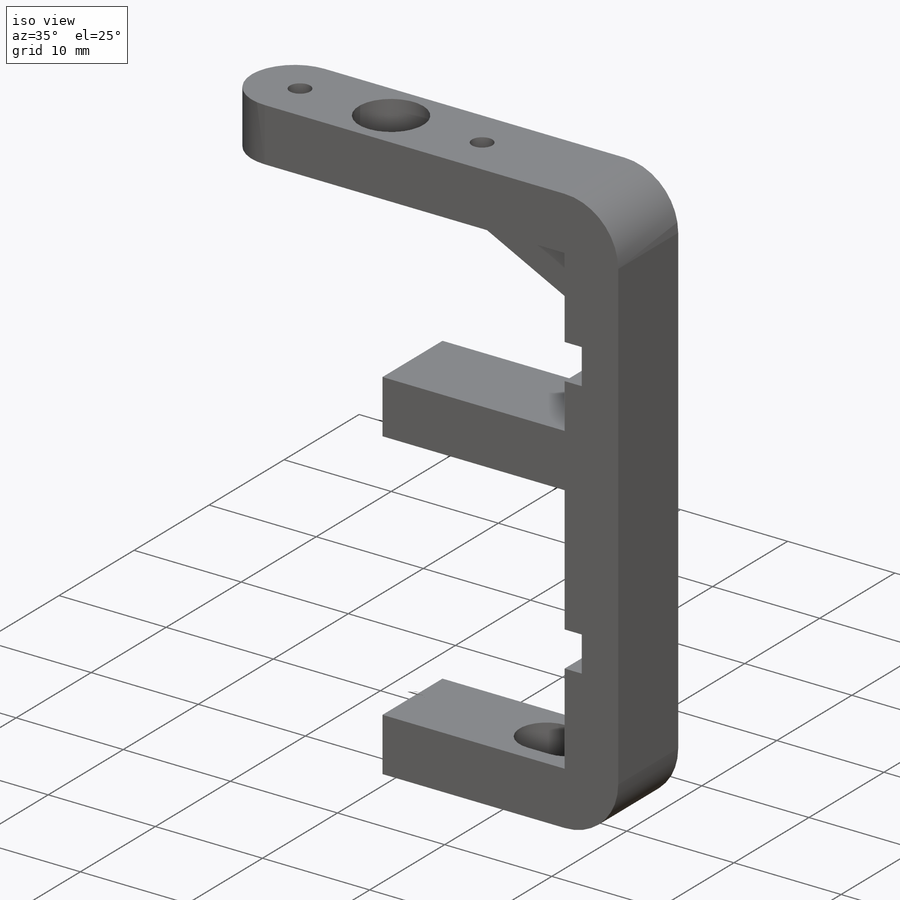
[diagram: iso view]
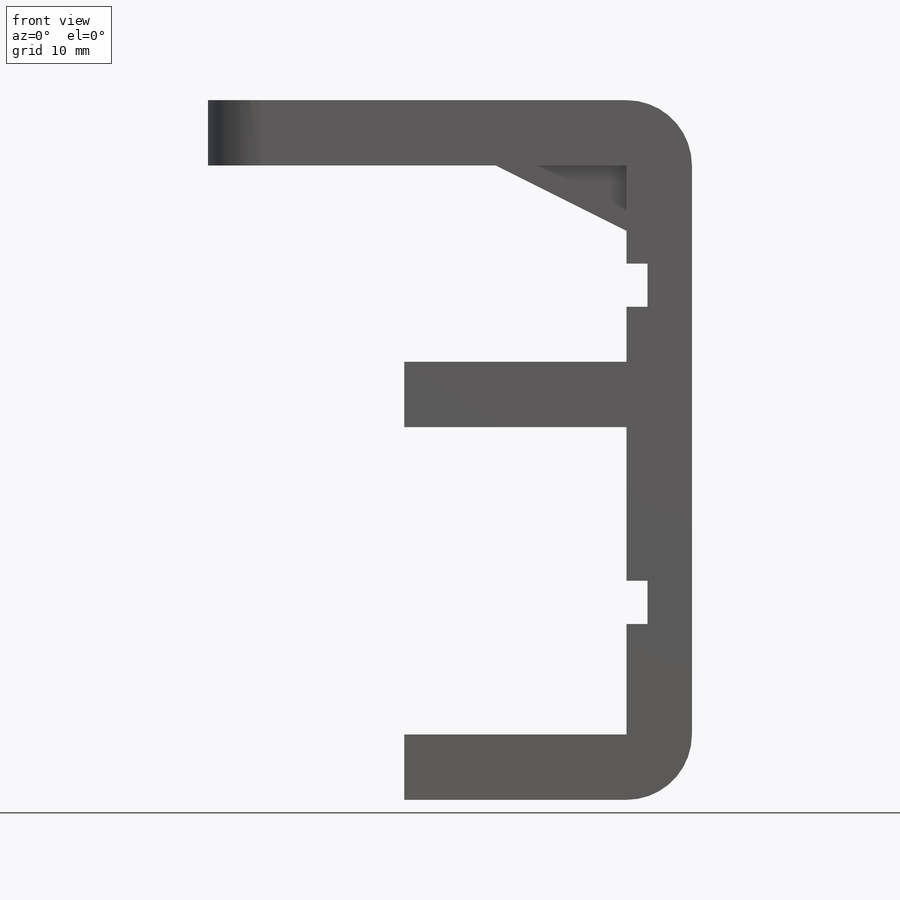
[diagram: front view]
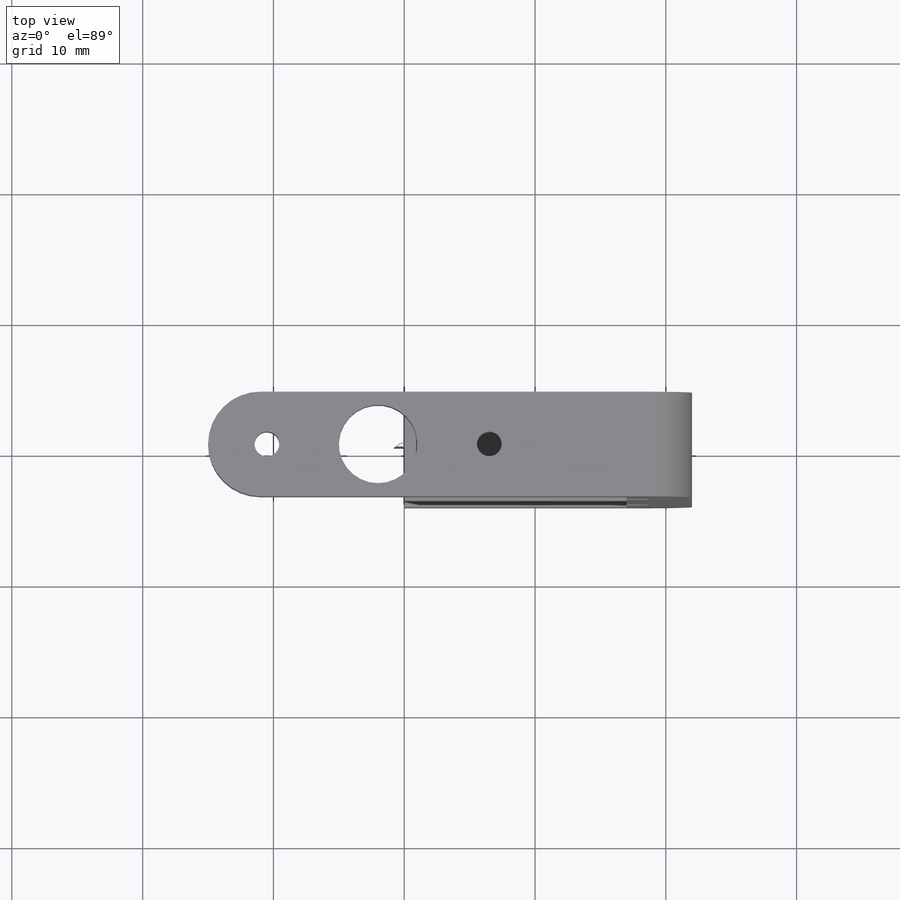
[diagram: top view]
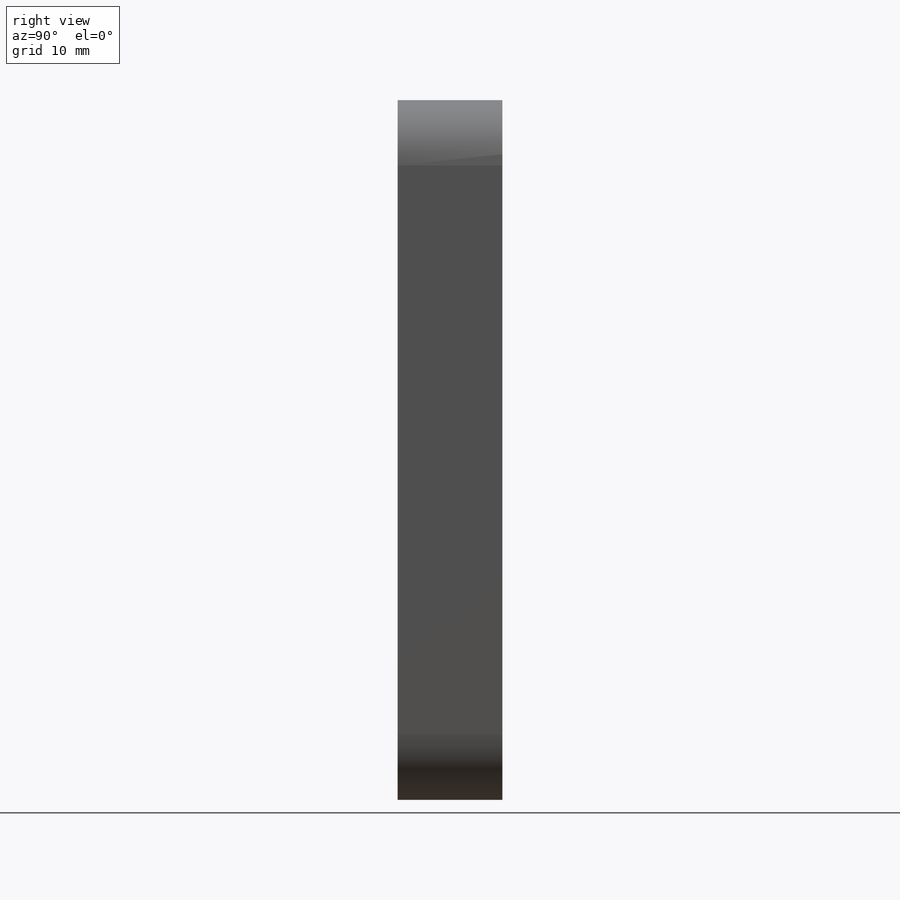
[diagram: right view]
SOLIDWORKS PART (.sldprt)
format: sldprt  version: not decoded by parser v0  size: 323,584 bytes
history: native  units: mm
features: sketch x9, cut_extrude x5, extrude x4, plane x3, fillet x2, material x1 (+10 scaffold rows collapsed)
feature tree (34):
  scaffold x10  (default folders/planes/origin — collapsed)
  material  "ABS"
  plane  "Přední rovina"
  plane  "Horní rovina"
  plane  "Pravá rovina"
  sketch  "Skica1"  dims[c1.D1=23.5mm c1.D2=22.0mm c1.D3=~6.578068mm c1.D4=5.0mm c2.D3=5.0mm c2.D4=5.0mm c2.D2=17.0mm]
  extrude  "Přidat vysunutím1"  Depth=8mm
  sketch  "Skica2"  dims[D1=5.0mm]
  extrude  "Přidat vysunutím2"  Depth=20mm
  sketch  "Skica3"  dims[D1=5.0mm]
  extrude  "Přidat vysunutím3"  Depth=32mm
  sketch  "Skica4"  dims[D1=5.0mm D2=10.0mm]
  extrude  "Přidat vysunutím4"  Depth=5mm
  sketch  "Skica5"  dims[D1=6.0mm D2=13.0mm]
  cut_extrude  "Odebrat vysunutím1"  Depth=15mm
  fillet  "Zaoblit1"  Radius=5mm
  sketch  "Skica6"  dims[D1=2.4mm]
  cut_extrude  "Odebrat vysunutím2"  Depth=8mm
  fillet  "Zaoblit2"  Radius=4mm
  sketch  "Skica7"  dims[D1=1.9mm D2=17.0mm D3=8.5mm]
  cut_extrude  "Odebrat vysunutím3"  Depth=13mm
  sketch  "Skica8"  dims[D1=5.0mm D2=2.0mm]
  cut_extrude  "Odebrat vysunutím4"  Depth=10mm
  sketch  "Skica9"  dims[D1=3.3mm D2=1.6mm D3=4.2mm D4=8.45mm]
  cut_extrude  "Odebrat vysunutím5"  Depth=10mm
decode coverage: 20 of 20 modeling features carry decoded parameters
note: ~ marks probable driven/reference dimensions
note: suppression state not decoded; provenance and decode notes live in map.json
